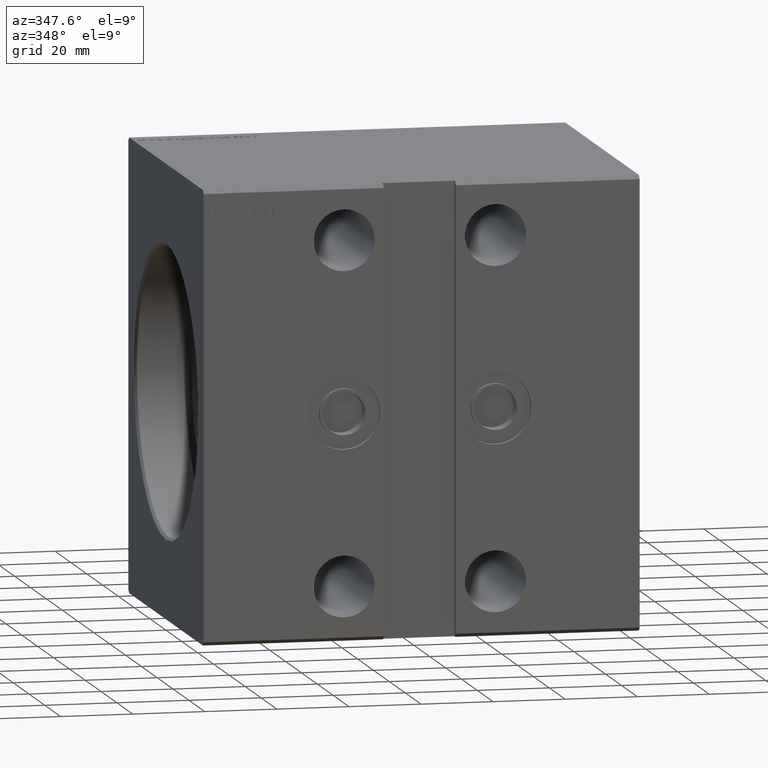
[diagram: clean part render]
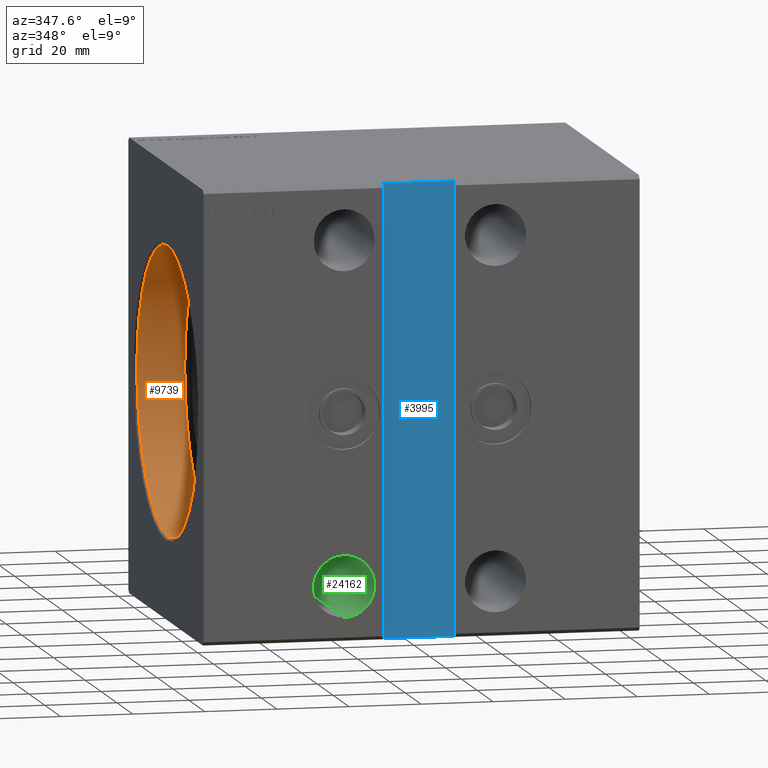
[diagram: same view with three faces highlighted in distinct colors, each labeled with its STEP entity id]
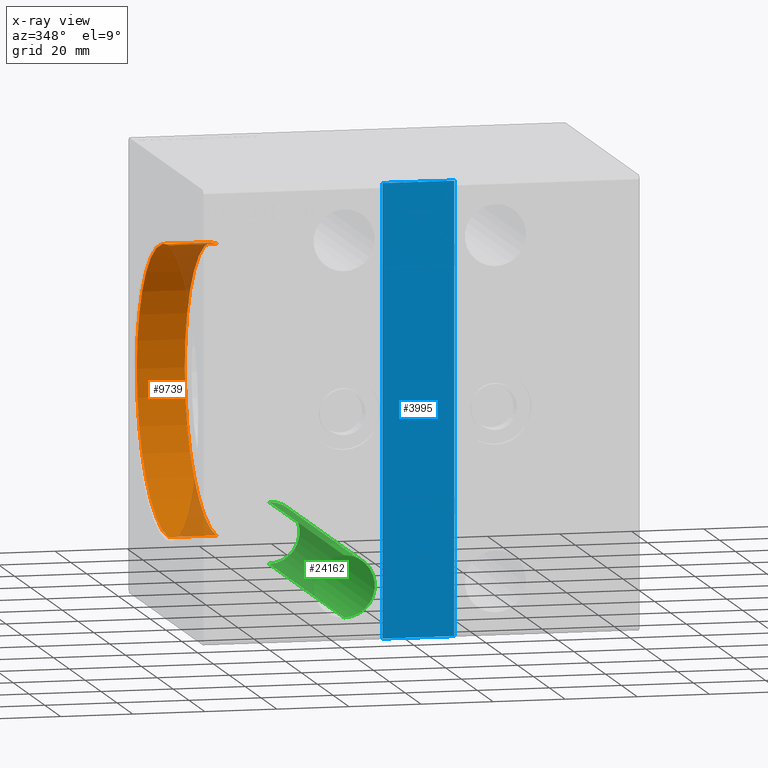
[diagram: x-ray of the same camera — body ghosted, the three highlighted faces saturated]
A machine part, auxiliary view with three faces highlighted in distinct colors.
The next image is the same camera in x-ray (body ghosted, the three faces saturated) — at least one of them is partly hidden behind the body in this view.
Their STEP definitions:

[orange] entity #9739 — the highlighted cylindrical surface (partial cylindrical patch) has radius 40 mm, axis along (-1, -0, -0).
#362 = CARTESIAN_POINT ( 'NONE',  ( 14.00000000000000000, 0.000000000000000000, 0.000000000000000000 ) ) ;
#958 = ORIENTED_EDGE ( 'NONE', *, *, #18614, .T. ) ;
#984 = DIRECTION ( 'NONE',  ( 0.000000000000000000, 0.000000000000000000, 1.000000000000000000 ) ) ;
#1228 = FACE_OUTER_BOUND ( 'NONE', #12773, .T. ) ;
#1284 = ORIENTED_EDGE ( 'NONE', *, *, #8679, .T. ) ;
#2369 = ORIENTED_EDGE ( 'NONE', *, *, #11824, .F. ) ;
#2699 = CYLINDRICAL_SURFACE ( 'NONE', #22533, 40.00000000000000000 ) ;
#4444 = VERTEX_POINT ( 'NONE', #39245 ) ;
#4723 = CIRCLE ( 'NONE', #12185, 40.00000000000000000 ) ;
#5794 = ORIENTED_EDGE ( 'NONE', *, *, #29678, .F. ) ;
#8679 = EDGE_CURVE ( 'NONE', #27035, #4444, #19861, .T. ) ;
#9081 = DIRECTION ( 'NONE',  ( 0.000000000000000000, 0.000000000000000000, 1.000000000000000000 ) ) ;
#9559 = CARTESIAN_POINT ( 'NONE',  ( 14.00000000000000000, 0.000000000000000000, 40.00000000000000000 ) ) ;
#9738 = CARTESIAN_POINT ( 'NONE',  ( 14.00000000000000000, 4.898587196589413026E-15, -40.00000000000000000 ) ) ;
#9739 = ADVANCED_FACE ( 'NONE', ( #1228 ), #2699, .F. ) ;
#10751 = DIRECTION ( 'NONE',  ( -1.000000000000000000, 0.000000000000000000, 0.000000000000000000 ) ) ;
#11824 = EDGE_CURVE ( 'NONE', #36265, #4444, #30363, .T. ) ;
#12185 = AXIS2_PLACEMENT_3D ( 'NONE', #362, #10751, #984 ) ;
#12514 = VECTOR ( 'NONE', #34858, 1000.000000000000000 ) ;
#12773 = EDGE_LOOP ( 'NONE', ( #2369, #5794, #958, #1284 ) ) ;
#13564 = CARTESIAN_POINT ( 'NONE',  ( 0.7000000000000130562, 0.000000000000000000, 0.000000000000000000 ) ) ;
#13990 = DIRECTION ( 'NONE',  ( -1.000000000000000000, -0.000000000000000000, -0.000000000000000000 ) ) ;
#14384 = CARTESIAN_POINT ( 'NONE',  ( 0.7000000000000130562, 0.000000000000000000, 40.00000000000000000 ) ) ;
#16124 = DIRECTION ( 'NONE',  ( -1.000000000000000000, 0.000000000000000000, 0.000000000000000000 ) ) ;
#18225 = DIRECTION ( 'NONE',  ( -1.000000000000000000, -0.000000000000000000, -0.000000000000000000 ) ) ;
#18614 = EDGE_CURVE ( 'NONE', #19113, #27035, #32098, .T. ) ;
#19113 = VERTEX_POINT ( 'NONE', #28331 ) ;
#19855 = VECTOR ( 'NONE', #13990, 1000.000000000000000 ) ;
#19861 = CIRCLE ( 'NONE', #30727, 40.00000000000000000 ) ;
#22533 = AXIS2_PLACEMENT_3D ( 'NONE', #24613, #18225, #9081 ) ;
#24613 = CARTESIAN_POINT ( 'NONE',  ( 14.00000000000000000, 0.000000000000000000, 0.000000000000000000 ) ) ;
#27035 = VERTEX_POINT ( 'NONE', #14384 ) ;
#28331 = CARTESIAN_POINT ( 'NONE',  ( 14.00000000000000000, 0.000000000000000000, 40.00000000000000000 ) ) ;
#29678 = EDGE_CURVE ( 'NONE', #19113, #36265, #4723, .T. ) ;
#30363 = LINE ( 'NONE', #39506, #19855 ) ;
#30727 = AXIS2_PLACEMENT_3D ( 'NONE', #13564, #16124, #35872 ) ;
#32098 = LINE ( 'NONE', #9559, #12514 ) ;
#34858 = DIRECTION ( 'NONE',  ( -1.000000000000000000, -0.000000000000000000, -0.000000000000000000 ) ) ;
#35872 = DIRECTION ( 'NONE',  ( 0.000000000000000000, 0.000000000000000000, -1.000000000000000000 ) ) ;
#36265 = VERTEX_POINT ( 'NONE', #9738 ) ;
#39245 = CARTESIAN_POINT ( 'NONE',  ( 0.7000000000000130562, 4.898587196589413026E-15, -40.00000000000000000 ) ) ;
#39506 = CARTESIAN_POINT ( 'NONE',  ( 14.00000000000000000, 4.898587196589413026E-15, -40.00000000000000000 ) ) ;

[blue] entity #3995 — the highlighted planar face has unit normal (0, -1, 0).
#148 = CARTESIAN_POINT ( 'NONE',  ( 50.00000000000000000, -45.50000000000000711, -62.50000000000002842 ) ) ;
#235 = LINE ( 'NONE', #19992, #11609 ) ;
#247 = DIRECTION ( 'NONE',  ( 1.110223024625156540E-16, 0.000000000000000000, -1.000000000000000000 ) ) ;
#456 = FACE_OUTER_BOUND ( 'NONE', #21162, .T. ) ;
#462 = VERTEX_POINT ( 'NONE', #24909 ) ;
#2129 = EDGE_CURVE ( 'NONE', #11706, #462, #235, .T. ) ;
#3995 = ADVANCED_FACE ( 'NONE', ( #456 ), #6825, .T. ) ;
#6825 = PLANE ( 'NONE',  #40120 ) ;
#8159 = VERTEX_POINT ( 'NONE', #8601 ) ;
#8601 = CARTESIAN_POINT ( 'NONE',  ( 49.99999999999998579, -45.50000000000000711, 62.49999999999997868 ) ) ;
#10044 = CARTESIAN_POINT ( 'NONE',  ( 50.00000000000000000, -45.50000000000000711, -62.50000000000002842 ) ) ;
#10670 = VECTOR ( 'NONE', #247, 1000.000000000000000 ) ;
#10845 = LINE ( 'NONE', #26167, #10670 ) ;
#11609 = VECTOR ( 'NONE', #29774, 1000.000000000000000 ) ;
#11706 = VERTEX_POINT ( 'NONE', #12534 ) ;
#11810 = DIRECTION ( 'NONE',  ( -1.000000000000000000, -0.000000000000000000, -0.000000000000000000 ) ) ;
#12534 = CARTESIAN_POINT ( 'NONE',  ( 70.00000000000001421, -45.50000000000000711, -62.50000000000002842 ) ) ;
#16820 = DIRECTION ( 'NONE',  ( 0.000000000000000000, -1.000000000000000000, 0.000000000000000000 ) ) ;
#16942 = ORIENTED_EDGE ( 'NONE', *, *, #36120, .T. ) ;
#17881 = VERTEX_POINT ( 'NONE', #148 ) ;
#18433 = ORIENTED_EDGE ( 'NONE', *, *, #24369, .T. ) ;
#19240 = CARTESIAN_POINT ( 'NONE',  ( 49.99999999999998579, -45.50000000000000711, 62.49999999999997868 ) ) ;
#19561 = ORIENTED_EDGE ( 'NONE', *, *, #2129, .T. ) ;
#19992 = CARTESIAN_POINT ( 'NONE',  ( 70.00000000000000000, -45.50000000000000711, 62.49999999999997868 ) ) ;
#21162 = EDGE_LOOP ( 'NONE', ( #19561, #37019, #18433, #16942 ) ) ;
#22269 = VECTOR ( 'NONE', #11810, 1000.000000000000000 ) ;
#24369 = EDGE_CURVE ( 'NONE', #8159, #17881, #10845, .T. ) ;
#24909 = CARTESIAN_POINT ( 'NONE',  ( 70.00000000000000000, -45.50000000000000711, 62.49999999999997868 ) ) ;
#25941 = EDGE_CURVE ( 'NONE', #462, #8159, #37943, .T. ) ;
#25990 = DIRECTION ( 'NONE',  ( 1.000000000000000000, 0.000000000000000000, 0.000000000000000000 ) ) ;
#26167 = CARTESIAN_POINT ( 'NONE',  ( 49.99999999999998579, -45.50000000000000711, 62.49999999999997868 ) ) ;
#29774 = DIRECTION ( 'NONE',  ( -1.110223024625156540E-16, -0.000000000000000000, 1.000000000000000000 ) ) ;
#36120 = EDGE_CURVE ( 'NONE', #17881, #11706, #36178, .T. ) ;
#36154 = DIRECTION ( 'NONE',  ( 0.000000000000000000, -0.000000000000000000, -1.000000000000000000 ) ) ;
#36178 = LINE ( 'NONE', #10044, #38731 ) ;
#37019 = ORIENTED_EDGE ( 'NONE', *, *, #25941, .T. ) ;
#37943 = LINE ( 'NONE', #19240, #22269 ) ;
#38731 = VECTOR ( 'NONE', #25990, 1000.000000000000000 ) ;
#39340 = CARTESIAN_POINT ( 'NONE',  ( 0.000000000000000000, -45.50000000000000711, 1.101411730778925047E-16 ) ) ;
#40120 = AXIS2_PLACEMENT_3D ( 'NONE', #39340, #16820, #36154 ) ;

[green] entity #24162 — the highlighted cylindrical surface (edge-blend (fillet) strip) has radius 8.5 mm, axis along (-0, -1, -0).
#1797 = EDGE_CURVE ( 'NONE', #35742, #22499, #28149, .T. ) ;
#3272 = CARTESIAN_POINT ( 'NONE',  ( 39.00000000000000000, 47.50000000000003553, -56.00000000000000711 ) ) ;
#3562 = CARTESIAN_POINT ( 'NONE',  ( 39.00000000000000000, -47.50000000000000711, -39.00000000000000711 ) ) ;
#5877 = DIRECTION ( 'NONE',  ( 0.000000000000000000, -1.000000000000000000, -1.692413147294446216E-16 ) ) ;
#6387 = EDGE_CURVE ( 'NONE', #35742, #41816, #19166, .T. ) ;
#6628 = CARTESIAN_POINT ( 'NONE',  ( 39.00000000000000000, 47.50000000000003553, -47.50000000000000711 ) ) ;
#12180 = DIRECTION ( 'NONE',  ( 0.000000000000000000, 0.000000000000000000, -1.000000000000000000 ) ) ;
#12568 = CARTESIAN_POINT ( 'NONE',  ( 39.00000000000000000, 47.50000000000003553, -47.50000000000000711 ) ) ;
#15794 = FACE_OUTER_BOUND ( 'NONE', #21397, .T. ) ;
#17043 = VECTOR ( 'NONE', #35351, 1000.000000000000000 ) ;
#17612 = EDGE_CURVE ( 'NONE', #41816, #25205, #25495, .T. ) ;
#18907 = CARTESIAN_POINT ( 'NONE',  ( 39.00000000000000000, 47.50000000000003553, -56.00000000000000711 ) ) ;
#19166 = CIRCLE ( 'NONE', #22562, 8.500000000000000000 ) ;
#19500 = ORIENTED_EDGE ( 'NONE', *, *, #1797, .F. ) ;
#19544 = EDGE_CURVE ( 'NONE', #25205, #22499, #30203, .T. ) ;
#21397 = EDGE_LOOP ( 'NONE', ( #19500, #26746, #40751, #41316 ) ) ;
#22499 = VERTEX_POINT ( 'NONE', #3562 ) ;
#22562 = AXIS2_PLACEMENT_3D ( 'NONE', #12568, #41679, #38491 ) ;
#24162 = ADVANCED_FACE ( 'NONE', ( #15794 ), #38532, .F. ) ;
#25205 = VERTEX_POINT ( 'NONE', #26604 ) ;
#25495 = LINE ( 'NONE', #18907, #38995 ) ;
#26118 = DIRECTION ( 'NONE',  ( -0.000000000000000000, -1.000000000000000000, -5.507058653894625853E-17 ) ) ;
#26604 = CARTESIAN_POINT ( 'NONE',  ( 39.00000000000000000, -47.50000000000000711, -56.00000000000002132 ) ) ;
#26746 = ORIENTED_EDGE ( 'NONE', *, *, #6387, .T. ) ;
#28149 = LINE ( 'NONE', #34519, #17043 ) ;
#30203 = CIRCLE ( 'NONE', #35625, 8.500000000000007105 ) ;
#31822 = DIRECTION ( 'NONE',  ( 0.000000000000000000, 0.000000000000000000, 1.000000000000000000 ) ) ;
#34519 = CARTESIAN_POINT ( 'NONE',  ( 39.00000000000000000, 47.50000000000003553, -39.00000000000000711 ) ) ;
#34999 = CARTESIAN_POINT ( 'NONE',  ( 39.00000000000000000, -47.50000000000000711, -47.50000000000001421 ) ) ;
#35351 = DIRECTION ( 'NONE',  ( -0.000000000000000000, -1.000000000000000000, -5.507058653894625853E-17 ) ) ;
#35625 = AXIS2_PLACEMENT_3D ( 'NONE', #34999, #5877, #31822 ) ;
#35742 = VERTEX_POINT ( 'NONE', #41354 ) ;
#38491 = DIRECTION ( 'NONE',  ( 0.000000000000000000, 0.000000000000000000, 1.000000000000000000 ) ) ;
#38532 = CYLINDRICAL_SURFACE ( 'NONE', #41887, 8.500000000000000000 ) ;
#38740 = DIRECTION ( 'NONE',  ( -0.000000000000000000, -1.000000000000000000, -5.507058653894625853E-17 ) ) ;
#38995 = VECTOR ( 'NONE', #26118, 1000.000000000000000 ) ;
#40751 = ORIENTED_EDGE ( 'NONE', *, *, #17612, .T. ) ;
#41316 = ORIENTED_EDGE ( 'NONE', *, *, #19544, .T. ) ;
#41354 = CARTESIAN_POINT ( 'NONE',  ( 39.00000000000000000, 47.50000000000003553, -39.00000000000000711 ) ) ;
#41679 = DIRECTION ( 'NONE',  ( -0.000000000000000000, 1.000000000000000000, 5.507058653894625853E-17 ) ) ;
#41816 = VERTEX_POINT ( 'NONE', #3272 ) ;
#41887 = AXIS2_PLACEMENT_3D ( 'NONE', #6628, #38740, #12180 ) ;